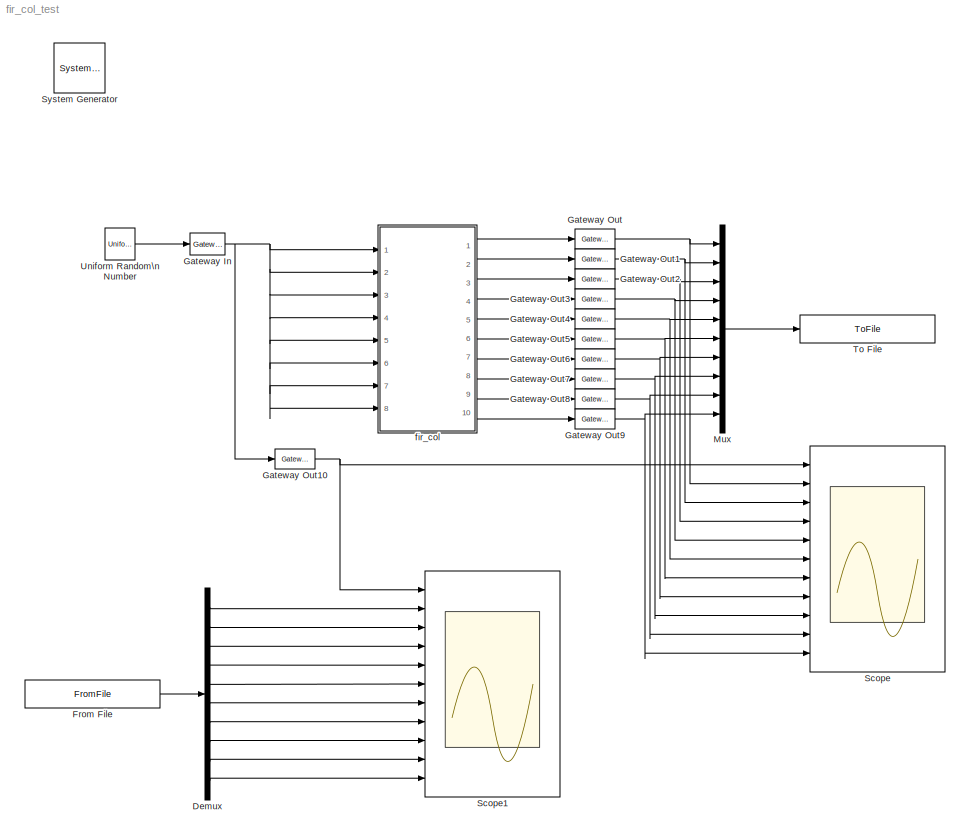
MODEL fir_col_test
KIND model
BLOCK [Reference]  System Generator  REF=xbsIndex_r4/ System Generator
  AttributesFormatString = System\\nGenerator
  FunctionWithSeparateData = off
  Ports = []
  RTWMemSecDataConstants = Inherit from model
  RTWMemSecDataInternal = Inherit from model
  RTWMemSecDataParameters = Inherit from model
  RTWMemSecFuncExecute = Inherit from model
  RTWMemSecFuncInitTerm = Inherit from model
  ShowPortLabels = FromPortIcon
  SourceBlock = xbsIndex_r4/ System Generator
  SourceType = Xilinx System Generator Block
  SystemSampleTime = -1
  Tag = genX
  UserData = DataTag0
  UserDataPersistent = on
  block_type = sysgen
  block_version = 10.1.1
  clock_wrapper = Clock Enables
  core_generation = According to Block Masks
  dbl_ovrd = According to Block Masks
  dcm_input_clock_period = 100
  deprecated_control = off
  directory = ./netlist
  eval_field = 0
  has_advanced_control = 0
  incr_netlist = off
  infoedit = System Generator
  package = ff668
  part = xc4vsx35
  run_coregen = off
  sg_icon_stat = 51,50,-1,-1,red,beige,0,07734,right
  sg_mask_display = fprintf('','COMMENT: begin icon graphics');\npatch([0 51 51 0 ],[0 0 50 50 ],[0.93 0.92 0.86]);\npatch([12 4 16 4 12 25 29 33 47 36 25 17 29 17 25 36 47 33 29 25 12 ],[5 13 25 37 45 45 41 45 45 34 45 37 25 13 5 16 5 5 9 5 5 ],[0.6 0.2 0.25]);\nplot([0 51 51 0 0 ],[0 0 50 50 0 ]);\nfprintf('','COMMENT: end icon graphics');\nfprintf('','COMMENT: begin icon text');\nfprintf('','COMMENT: end icon text...<+5ch>
  sggui_pos = -1,-1,-1,-1
  simulink_period = 1
  speed = -10
  synthesis_tool = XST
  sysclk_period = 100
  testbench = off
  trim_vbits = Everywhere in SubSystem
  xilinxfamily = Virtex4
BLOCK [Demux] Demux
  DisplayOption = bar
  Outputs = 10
  Ports = [1, 10]
BLOCK [FromFile] From File
  FileName = fir_col_test_reference.mat
  SampleTime = 1
BLOCK [Reference] Gateway In  REF=xbsIndex_r4/Gateway In
  LOCs = {}
  Ports = [1, 1]
  SourceBlock = xbsIndex_r4/Gateway In
  SourceType = Xilinx Gateway In Block
  arith_type = Signed  (2's comp)
  bin_pt = 15
  block_type = gatewayin
  block_version = 10.1.1
  dbl_ovrd = off
  has_advanced_control = 0
  hdl_port = on
  infoedit = Gateway in block.  Converts inputs of type Simulink integer, double and fixed point to  Xilinx fixed point type.<P><P>Hardware notes:  In hardware these blocks become top level input ports.
  locs_specified = off
  n_bits = 16
  overflow = Saturate
  period = 1
  quantization = Round  (unbiased: +/- Inf)
  sg_icon_stat = 35,22,1,1,white,yellow,0,00d3666e,right,
  sg_mask_display = fprintf('','COMMENT: begin icon graphics');\npatch([0 1 1 0 ],[0 0 1 1 ],[0.95 0.93 0.65]);\npatch([0.342857 0.228571 0.371429 0.228571 0.342857 0.514286 0.571429 0.628571 0.8 0.657143 0.514286 0.428571 0.6 0.428571 0.514286 0.657143 0.8 0.628571 0.571429 0.514286 0.342857 ],[0.0909091 0.272727 0.5 0.727273 0.909091 0.909091 0.818182 0.909091 0.909091 0.681818 0.909091 0.772727 0.5 0.227273 0.0909...<+366ch>
  sggui_pos = 20,20,407,458
  timing_constraint = None
  xl_area = [0,0,0,0,0,0,0]
  xl_use_area = off
BLOCK [Reference] Gateway Out  REF=xbsIndex_r4/Gateway Out
  LOCs = {}
  Ports = [1, 1]
  SourceBlock = xbsIndex_r4/Gateway Out
  SourceType = Xilinx Gateway Out Block
  block_type = gatewayout
  block_version = 10.1.1
  has_advanced_control = 0
  hdl_port = on
  infoedit = Gateway out block.  Converts Xilinx fixed point inputs into ouputs of type Simulink integer, double, or fixed point.<P><P>Hardware notes:  In hardware these blocks become top level output ports or are discarded, depending on how they are configured.  <repeated x11 — deduplicated; at blocks: Gateway Out, Gateway Out1, Gateway Out10, Gateway Out2, Gateway Out3, Gateway Out4, Gateway Out5, Gateway Out6, Gateway Out7, Gateway Out8, Gateway Out9>
  locs_specified = off
  sg_icon_stat = 40,20,1,1,white,yellow,0,cc31b7ac,right,
  sg_mask_display = fprintf('','COMMENT: begin icon graphics');\npatch([0 1 1 0 ],[0 0 1 1 ],[0.95 0.93 0.65]);\npatch([0.35 0.275 0.4 0.275 0.35 0.475 0.5 0.525 0.675 0.575 0.475 0.4 0.525 0.4 0.475 0.575 0.675 0.525 0.5 0.475 0.35 ],[0.1 0.25 0.5 0.75 0.9 0.9 0.85 0.9 0.9 0.7 0.9 0.75 0.5 0.25 0.1 0.3 0.1 0.1 0.15 0.1 0.1 ],[0.98 0.96 0.92]);\nplot([0 1 1 0 0 ],[0 0 1 1 0 ]);\nfprintf('','COMMENT: end icon graphics...<+211ch>  <repeated x11 — deduplicated; at blocks: Gateway Out, Gateway Out1, Gateway Out10, Gateway Out2, Gateway Out3, Gateway Out4, Gateway Out5, Gateway Out6, Gateway Out7, Gateway Out8, Gateway Out9>
  sggui_pos = -1,-1,-1,-1
  timing_constraint = None
  xl_area = [0,0,0,0,0,0,0]
  xl_use_area = off
BLOCK [Reference] Gateway Out1  REF=xbsIndex_r4/Gateway Out
  LOCs = {}
  Ports = [1, 1]
  SourceBlock = xbsIndex_r4/Gateway Out
  SourceType = Xilinx Gateway Out Block
  block_type = gatewayout
  block_version = 10.1.1
  has_advanced_control = 0
  hdl_port = on
  locs_specified = off
  sg_icon_stat = 40,20,1,1,white,yellow,0,cc31b7ac,right,
  sggui_pos = -1,-1,-1,-1
  timing_constraint = None
  xl_area = [0,0,0,0,0,0,0]
  xl_use_area = off
BLOCK [Reference] Gateway Out10  REF=xbsIndex_r4/Gateway Out
  LOCs = {}
  Ports = [1, 1]
  SourceBlock = xbsIndex_r4/Gateway Out
  SourceType = Xilinx Gateway Out Block
  block_type = gatewayout
  block_version = 10.1.1
  has_advanced_control = 0
  hdl_port = on
  locs_specified = off
  sg_icon_stat = 40,20,1,1,white,yellow,0,cc31b7ac,right,
  sggui_pos = -1,-1,-1,-1
  timing_constraint = None
  xl_area = [0,0,0,0,0,0,0]
  xl_use_area = off
BLOCK [Reference] Gateway Out2  REF=xbsIndex_r4/Gateway Out
  LOCs = {}
  Ports = [1, 1]
  SourceBlock = xbsIndex_r4/Gateway Out
  SourceType = Xilinx Gateway Out Block
  block_type = gatewayout
  block_version = 10.1.1
  has_advanced_control = 0
  hdl_port = on
  locs_specified = off
  sg_icon_stat = 40,20,1,1,white,yellow,0,cc31b7ac,right,
  sggui_pos = -1,-1,-1,-1
  timing_constraint = None
  xl_area = [0,0,0,0,0,0,0]
  xl_use_area = off
BLOCK [Reference] Gateway Out3  REF=xbsIndex_r4/Gateway Out
  LOCs = {}
  Ports = [1, 1]
  SourceBlock = xbsIndex_r4/Gateway Out
  SourceType = Xilinx Gateway Out Block
  block_type = gatewayout
  block_version = 10.1.1
  has_advanced_control = 0
  hdl_port = on
  locs_specified = off
  sg_icon_stat = 40,20,1,1,white,yellow,0,cc31b7ac,right,
  sggui_pos = -1,-1,-1,-1
  timing_constraint = None
  xl_area = [0,0,0,0,0,0,0]
  xl_use_area = off
BLOCK [Reference] Gateway Out4  REF=xbsIndex_r4/Gateway Out
  LOCs = {}
  Ports = [1, 1]
  SourceBlock = xbsIndex_r4/Gateway Out
  SourceType = Xilinx Gateway Out Block
  block_type = gatewayout
  block_version = 10.1.1
  has_advanced_control = 0
  hdl_port = on
  locs_specified = off
  sg_icon_stat = 40,20,1,1,white,yellow,0,cc31b7ac,right,
  sggui_pos = -1,-1,-1,-1
  timing_constraint = None
  xl_area = [0,0,0,0,0,0,0]
  xl_use_area = off
BLOCK [Reference] Gateway Out5  REF=xbsIndex_r4/Gateway Out
  LOCs = {}
  Ports = [1, 1]
  SourceBlock = xbsIndex_r4/Gateway Out
  SourceType = Xilinx Gateway Out Block
  block_type = gatewayout
  block_version = 10.1.1
  has_advanced_control = 0
  hdl_port = on
  locs_specified = off
  sg_icon_stat = 40,20,1,1,white,yellow,0,cc31b7ac,right,
  sggui_pos = -1,-1,-1,-1
  timing_constraint = None
  xl_area = [0,0,0,0,0,0,0]
  xl_use_area = off
BLOCK [Reference] Gateway Out6  REF=xbsIndex_r4/Gateway Out
  LOCs = {}
  Ports = [1, 1]
  SourceBlock = xbsIndex_r4/Gateway Out
  SourceType = Xilinx Gateway Out Block
  block_type = gatewayout
  block_version = 10.1.1
  has_advanced_control = 0
  hdl_port = on
  locs_specified = off
  sg_icon_stat = 40,20,1,1,white,yellow,0,cc31b7ac,right,
  sggui_pos = -1,-1,-1,-1
  timing_constraint = None
  xl_area = [0,0,0,0,0,0,0]
  xl_use_area = off
BLOCK [Reference] Gateway Out7  REF=xbsIndex_r4/Gateway Out
  LOCs = {}
  Ports = [1, 1]
  SourceBlock = xbsIndex_r4/Gateway Out
  SourceType = Xilinx Gateway Out Block
  block_type = gatewayout
  block_version = 10.1.1
  has_advanced_control = 0
  hdl_port = on
  locs_specified = off
  sg_icon_stat = 40,20,1,1,white,yellow,0,cc31b7ac,right,
  sggui_pos = -1,-1,-1,-1
  timing_constraint = None
  xl_area = [0,0,0,0,0,0,0]
  xl_use_area = off
BLOCK [Reference] Gateway Out8  REF=xbsIndex_r4/Gateway Out
  LOCs = {}
  Ports = [1, 1]
  SourceBlock = xbsIndex_r4/Gateway Out
  SourceType = Xilinx Gateway Out Block
  block_type = gatewayout
  block_version = 10.1.1
  has_advanced_control = 0
  hdl_port = on
  locs_specified = off
  sg_icon_stat = 40,20,1,1,white,yellow,0,cc31b7ac,right,
  sggui_pos = -1,-1,-1,-1
  timing_constraint = None
  xl_area = [0,0,0,0,0,0,0]
  xl_use_area = off
BLOCK [Reference] Gateway Out9  REF=xbsIndex_r4/Gateway Out
  LOCs = {}
  Ports = [1, 1]
  SourceBlock = xbsIndex_r4/Gateway Out
  SourceType = Xilinx Gateway Out Block
  block_type = gatewayout
  block_version = 10.1.1
  has_advanced_control = 0
  hdl_port = on
  locs_specified = off
  sg_icon_stat = 40,20,1,1,white,yellow,0,cc31b7ac,right,
  sggui_pos = -1,-1,-1,-1
  timing_constraint = None
  xl_area = [0,0,0,0,0,0,0]
  xl_use_area = off
BLOCK [Mux] Mux
  DisplayOption = bar
  Inputs = 10
  Ports = [10, 1]
BLOCK [Scope] Scope
  DataFormat = StructureWithTime
  Floating = off
  NumInputPorts = 11
  Ports = [11]
  SampleTime = 0
  YMax = 1~1~1~1~1~1~1~1~1~5~5
  YMin = -1~-1~-1~-1~-1~-1~-1~-1~-1~-5~-5
BLOCK [Scope] Scope1
  DataFormat = StructureWithTime
  Floating = off
  NumInputPorts = 11
  Ports = [11]
  SampleTime = 0
  SaveName = ScopeData1
  YMax = 1~1~1~1~1~1~1~1~1~5~5
  YMin = -1~-1~-1~-1~-1~-1~-1~-1~-1~-5~-5
BLOCK [ToFile] To File
  Filename = fir_col_test_output.mat
  MatrixName = output
BLOCK [UniformRandomNumber] Uniform Random\nNumber
  SampleTime = 0
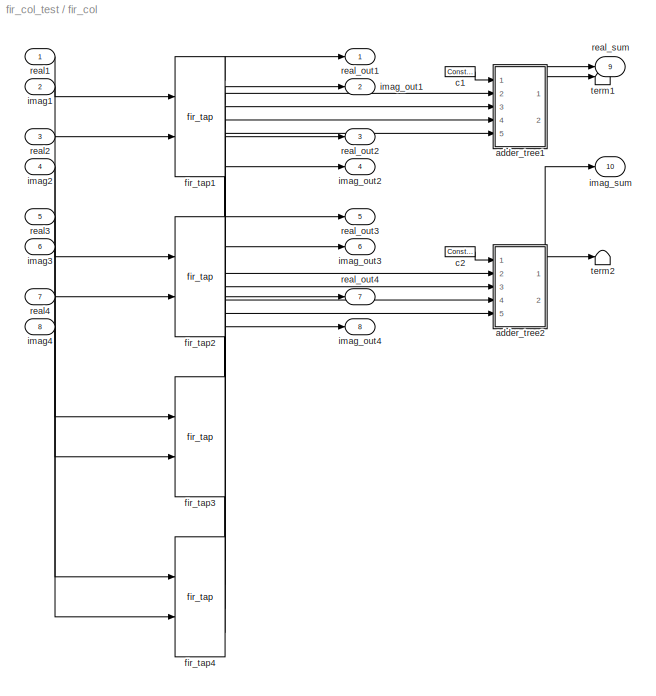
BLOCK [SubSystem] fir_col
  AncestorBlock = casper_library_downconverter/fir_col
  FunctionWithSeparateData = off
  MaskCallbackString = |||||||
  MaskEnableString = on,on,on,on,on,on,on,on
  MaskHelp = eval('xlWeb(''http://casper.berkeley.edu/wiki/Fir_col'')')
  MaskHideContents = off
  MaskIconFrame = on
  MaskIconOpaque = on
  MaskIconRotate = none
  MaskIconUnits = autoscale
  MaskInitialization = fir_col_init(gcb, ...\n    'n_inputs', n_inputs,...\n    'coeff', coeff, ...\n    'mult_latency', mult_latency, ...\n    'add_latency', add_latency, ...\n    'coeff_bit_width', coeff_bit_width, ...\n    'coeff_bin_pt', coeff_bin_pt, ...\n    'first_stage_hdl', first_stage_hdl, ...\n    'adder_imp', adder_imp);
  MaskPromptString = Inputs|Coefficients|Add latency|Mult Latency|Coefficient bit width|Coefficient binary point|Implement first stage of adder trees on output as behavioural HDL|Adder implementation
  MaskSelfModifiable = on
  MaskStyleString = edit,edit,edit,edit,edit,edit,checkbox,popup(Behavioral|Fabric|DSP48)
  MaskTabNameString = ,,,,,,,
  MaskToolTipString = on,on,on,on,on,on,on,on
  MaskTunableValueString = on,on,on,on,on,on,on,on
  MaskType = fir_col
  MaskValueString = 4|getfield( getfield( get_param( gcb,'UserData' ), 'parameters'),'coeff')|4|3|18|17|on|Fabric
  MaskVarAliasString = ,,,,,,,
  MaskVariables = n_inputs=@1;coeff=@2;add_latency=@3;mult_latency=@4;coeff_bit_width=@5;coeff_bin_pt=@6;first_stage_hdl=&7;adder_imp=&8;
  MaskVisibilityString = on,on,on,on,on,on,on,on
  MinAlgLoopOccurrences = off
  Opaque = off
  Ports = [8, 10]
  PropExecContextOutsideSubsystem = off
  RTWSystemCode = Auto
  RequestExecContextInheritance = off
  UserData = DataTag1
  UserDataPersistent = on
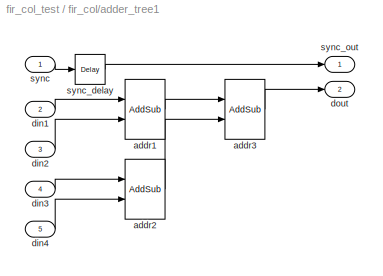
BLOCK [SubSystem] fir_col/adder_tree1
  AncestorBlock = casper_library_misc/adder_tree
  AttributesFormatString = latency 8
  FunctionWithSeparateData = off
  MaskCallbackString = |||
  MaskDescription = Sums all inputs using a tree of adds and delays.\n\nNumber of inputs: The number of inputs to the block to be summed\nAdd latency: The number of clock cycles to perform one addition (affects timing)..\nAdder implementation: choice of fabric or DSP48E core, or behavioral HDL\nUse behavioural HDL for first stage of adders: Causes the first stage of adders to be absorbed into DSP blocks if multiplier...<+59ch>
  MaskEnableString = on,on,on,on
  MaskHelp = eval('xlWeb(''http://casper.berkeley.edu/wiki/Adder_tree'')')
  MaskHideContents = off
  MaskIconFrame = on
  MaskIconOpaque = on
  MaskIconRotate = none
  MaskIconUnits = autoscale
  MaskInitialization = adder_tree_init(gcb, ...\n    'n_inputs', n_inputs, ...\n    'latency', latency, ...\n    'adder_imp', adder_imp, ...\n    'first_stage_hdl', first_stage_hdl);
  MaskPromptString = Number of Inputs|Add Latency|Adder implementation|Use behavioural HDL for first stage of adders
  MaskSelfModifiable = on
  MaskStyleString = edit,edit,popup(Behavioral|Fabric|DSP48),checkbox
  MaskTabNameString = ,,,
  MaskToolTipString = on,on,on,on
  MaskTunableValueString = on,on,on,on
  MaskType = adder_tree
  MaskValueString = 4|4|Fabric|on
  MaskVarAliasString = ,,,
  MaskVariables = n_inputs=@1;latency=@2;adder_imp=&3;first_stage_hdl=&4;
  MaskVisibilityString = on,on,on,on
  MinAlgLoopOccurrences = off
  Opaque = off
  Ports = [5, 2]
  PropExecContextOutsideSubsystem = off
  RTWSystemCode = Auto
  RequestExecContextInheritance = off
  UserData = DataTag2
  UserDataPersistent = on
BLOCK [Reference] fir_col/adder_tree1/addr1  REF=xbsIndex_r4/AddSub
  Ports = [2, 1]
  SourceBlock = xbsIndex_r4/AddSub
  SourceType = Xilinx Adder/Subtracter Block
  arith_type = Unsigned
  bin_pt = 14
  block_type = addsub
  block_version = 11.4
  dbl_ovrd = off
  en = off
  has_advanced_control = 0
  hw_selection = Fabric
  latency = 4
  mode = Addition
  n_bits = 16
  overflow = Wrap
  pipelined = on
  precision = Full
  quantization = Truncate
  sg_icon_stat = 40,60,2,1,white,blue,0,4eb764e4,right,
  sg_mask_display = fprintf('','COMMENT: begin icon graphics');\npatch([0 1 1 0 ],[0 0 1 1 ],[0.77 0.82 0.91]);\npatch([0.25 0.075 0.3 0.075 0.25 0.525 0.6 0.675 0.95 0.725 0.5 0.35 0.6 0.35 0.5 0.725 0.95 0.675 0.6 0.525 0.25 ],[0.233333 0.35 0.5 0.65 0.766667 0.766667 0.716667 0.766667 0.766667 0.616667 0.766667 0.666667 0.5 0.333333 0.233333 0.383333 0.233333 0.233333 0.283333 0.233333 0.233333 ],[0.98 0.96 0.92])...<+386ch>  <repeated x6 — deduplicated; at blocks: addr1, addr2, addr3>
  sggui_pos = 22,98,419,344
  use_behavioral_HDL = on
  use_carryin = off
  use_carryout = off
  use_rpm = on
  xl_area = [0,0,0,0,0,0,0]
  xl_use_area = off
BLOCK [Reference] fir_col/adder_tree1/addr2  REF=xbsIndex_r4/AddSub
  Ports = [2, 1]
  SourceBlock = xbsIndex_r4/AddSub
  SourceType = Xilinx Adder/Subtracter Block
  arith_type = Unsigned
  bin_pt = 14
  block_type = addsub
  block_version = 11.4
  dbl_ovrd = off
  en = off
  has_advanced_control = 0
  hw_selection = Fabric
  latency = 4
  mode = Addition
  n_bits = 16
  overflow = Wrap
  pipelined = on
  precision = Full
  quantization = Truncate
  sg_icon_stat = 40,60,2,1,white,blue,0,4eb764e4,right,
  sggui_pos = -1,-1,-1,-1
  use_behavioral_HDL = on
  use_carryin = off
  use_carryout = off
  use_rpm = on
  xl_area = [0,0,0,0,0,0,0]
  xl_use_area = off
BLOCK [Reference] fir_col/adder_tree1/addr3  REF=xbsIndex_r4/AddSub
  Ports = [2, 1]
  SourceBlock = xbsIndex_r4/AddSub
  SourceType = Xilinx Adder/Subtracter Block
  arith_type = Unsigned
  bin_pt = 14
  block_type = addsub
  block_version = 11.4
  dbl_ovrd = off
  en = off
  has_advanced_control = 0
  hw_selection = Fabric
  latency = 4
  mode = Addition
  n_bits = 16
  overflow = Wrap
  pipelined = on
  precision = Full
  quantization = Truncate
  sg_icon_stat = 40,60,2,1,white,blue,0,4eb764e4,right,
  sggui_pos = -1,-1,-1,-1
  use_behavioral_HDL = off
  use_carryin = off
  use_carryout = off
  use_rpm = on
  xl_area = [0,0,0,0,0,0,0]
  xl_use_area = off
BLOCK [Inport] fir_col/adder_tree1/din1
  IconDisplay = Port number
  Port = 2
BLOCK [Inport] fir_col/adder_tree1/din2
  IconDisplay = Port number
  Port = 3
BLOCK [Inport] fir_col/adder_tree1/din3
  IconDisplay = Port number
  Port = 4
BLOCK [Inport] fir_col/adder_tree1/din4
  IconDisplay = Port number
  Port = 5
BLOCK [Outport] fir_col/adder_tree1/dout
  IconDisplay = Port number
  Port = 2
BLOCK [Inport] fir_col/adder_tree1/sync
  IconDisplay = Port number
BLOCK [Reference] fir_col/adder_tree1/sync_delay  REF=xbsIndex_r4/Delay
  Ports = [1, 1]
  SourceBlock = xbsIndex_r4/Delay
  SourceType = Xilinx Delay Block
  block_type = delay
  block_version = 11.4
  dbl_ovrd = off
  en = off
  has_advanced_control = 0
  infoedit = Hardware notes: A delay line is a chain, each link of which is an SRL16 followed by a flip-flop.
  latency = 8
  reg_retiming = on
  sg_icon_stat = 30,30,1,1,white,blue,0,e47f993a,right,
  sg_mask_display = fprintf('','COMMENT: begin icon graphics');\npatch([0 1 1 0 ],[0 0 1 1 ],[0.77 0.82 0.91]);\npatch([0.233333 0.0666667 0.3 0.0666667 0.233333 0.5 0.566667 0.633333 0.9 0.666667 0.466667 0.3 0.5 0.3 0.466667 0.666667 0.9 0.633333 0.566667 0.5 0.233333 ],[0.1 0.266667 0.5 0.733333 0.9 0.9 0.833333 0.9 0.9 0.666667 0.866667 0.7 0.5 0.3 0.133333 0.333333 0.1 0.1 0.166667 0.1 0.1 ],[0.98 0.96 0.92]);\n...<+204ch>
  sggui_pos = 21,71,419,315
  xl_area = [0,0,0,0,0,0,0]
  xl_use_area = off
BLOCK [Outport] fir_col/adder_tree1/sync_out
  IconDisplay = Port number
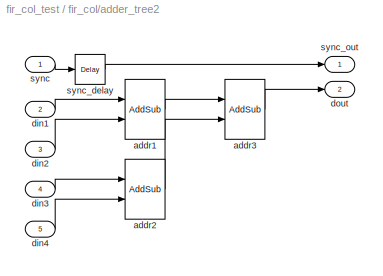
BLOCK [SubSystem] fir_col/adder_tree2
  AncestorBlock = casper_library_misc/adder_tree
  AttributesFormatString = latency 8
  FunctionWithSeparateData = off
  MaskCallbackString = |||
  MaskDescription = Sums all inputs using a tree of adds and delays.\n\nNumber of inputs: The number of inputs to the block to be summed\nAdd latency: The number of clock cycles to perform one addition (affects timing)..\nAdder implementation: choice of fabric or DSP48E core, or behavioral HDL\nUse behavioural HDL for first stage of adders: Causes the first stage of adders to be absorbed into DSP blocks if multiplier...<+59ch>
  MaskEnableString = on,on,on,on
  MaskHelp = eval('xlWeb(''http://casper.berkeley.edu/wiki/Adder_tree'')')
  MaskHideContents = off
  MaskIconFrame = on
  MaskIconOpaque = on
  MaskIconRotate = none
  MaskIconUnits = autoscale
  MaskInitialization = adder_tree_init(gcb, ...\n    'n_inputs', n_inputs, ...\n    'latency', latency, ...\n    'adder_imp', adder_imp, ...\n    'first_stage_hdl', first_stage_hdl);
  MaskPromptString = Number of Inputs|Add Latency|Adder implementation|Use behavioural HDL for first stage of adders
  MaskSelfModifiable = on
  MaskStyleString = edit,edit,popup(Behavioral|Fabric|DSP48),checkbox
  MaskTabNameString = ,,,
  MaskToolTipString = on,on,on,on
  MaskTunableValueString = on,on,on,on
  MaskType = adder_tree
  MaskValueString = 4|4|Fabric|on
  MaskVarAliasString = ,,,
  MaskVariables = n_inputs=@1;latency=@2;adder_imp=&3;first_stage_hdl=&4;
  MaskVisibilityString = on,on,on,on
  MinAlgLoopOccurrences = off
  Opaque = off
  Ports = [5, 2]
  PropExecContextOutsideSubsystem = off
  RTWSystemCode = Auto
  RequestExecContextInheritance = off
  UserData = DataTag3
  UserDataPersistent = on
BLOCK [Reference] fir_col/adder_tree2/addr1  REF=xbsIndex_r4/AddSub
  Ports = [2, 1]
  SourceBlock = xbsIndex_r4/AddSub
  SourceType = Xilinx Adder/Subtracter Block
  arith_type = Unsigned
  bin_pt = 14
  block_type = addsub
  block_version = 11.4
  dbl_ovrd = off
  en = off
  has_advanced_control = 0
  hw_selection = Fabric
  latency = 4
  mode = Addition
  n_bits = 16
  overflow = Wrap
  pipelined = on
  precision = Full
  quantization = Truncate
  sg_icon_stat = 40,60,2,1,white,blue,0,4eb764e4,right,
  sggui_pos = 22,98,419,344
  use_behavioral_HDL = on
  use_carryin = off
  use_carryout = off
  use_rpm = on
  xl_area = [0,0,0,0,0,0,0]
  xl_use_area = off
BLOCK [Reference] fir_col/adder_tree2/addr2  REF=xbsIndex_r4/AddSub
  Ports = [2, 1]
  SourceBlock = xbsIndex_r4/AddSub
  SourceType = Xilinx Adder/Subtracter Block
  arith_type = Unsigned
  bin_pt = 14
  block_type = addsub
  block_version = 11.4
  dbl_ovrd = off
  en = off
  has_advanced_control = 0
  hw_selection = Fabric
  latency = 4
  mode = Addition
  n_bits = 16
  overflow = Wrap
  pipelined = on
  precision = Full
  quantization = Truncate
  sg_icon_stat = 40,60,2,1,white,blue,0,4eb764e4,right,
  sggui_pos = -1,-1,-1,-1
  use_behavioral_HDL = on
  use_carryin = off
  use_carryout = off
  use_rpm = on
  xl_area = [0,0,0,0,0,0,0]
  xl_use_area = off
BLOCK [Reference] fir_col/adder_tree2/addr3  REF=xbsIndex_r4/AddSub
  Ports = [2, 1]
  SourceBlock = xbsIndex_r4/AddSub
  SourceType = Xilinx Adder/Subtracter Block
  arith_type = Unsigned
  bin_pt = 14
  block_type = addsub
  block_version = 11.4
  dbl_ovrd = off
  en = off
  has_advanced_control = 0
  hw_selection = Fabric
  latency = 4
  mode = Addition
  n_bits = 16
  overflow = Wrap
  pipelined = on
  precision = Full
  quantization = Truncate
  sg_icon_stat = 40,60,2,1,white,blue,0,4eb764e4,right,
  sggui_pos = -1,-1,-1,-1
  use_behavioral_HDL = off
  use_carryin = off
  use_carryout = off
  use_rpm = on
  xl_area = [0,0,0,0,0,0,0]
  xl_use_area = off
BLOCK [Inport] fir_col/adder_tree2/din1
  IconDisplay = Port number
  Port = 2
BLOCK [Inport] fir_col/adder_tree2/din2
  IconDisplay = Port number
  Port = 3
BLOCK [Inport] fir_col/adder_tree2/din3
  IconDisplay = Port number
  Port = 4
BLOCK [Inport] fir_col/adder_tree2/din4
  IconDisplay = Port number
  Port = 5
BLOCK [Outport] fir_col/adder_tree2/dout
  IconDisplay = Port number
  Port = 2
BLOCK [Inport] fir_col/adder_tree2/sync
  IconDisplay = Port number
BLOCK [Reference] fir_col/adder_tree2/sync_delay  REF=xbsIndex_r4/Delay
  Ports = [1, 1]
  SourceBlock = xbsIndex_r4/Delay
  SourceType = Xilinx Delay Block
  block_type = delay
  block_version = 11.4
  dbl_ovrd = off
  en = off
  has_advanced_control = 0
  infoedit = Hardware notes: A delay line is a chain, each link of which is an SRL16 followed by a flip-flop.
  latency = 8
  reg_retiming = on
  sg_icon_stat = 30,30,1,1,white,blue,0,e47f993a,right,
  sg_mask_display = fprintf('','COMMENT: begin icon graphics');\npatch([0 1 1 0 ],[0 0 1 1 ],[0.77 0.82 0.91]);\npatch([0.233333 0.0666667 0.3 0.0666667 0.233333 0.5 0.566667 0.633333 0.9 0.666667 0.466667 0.3 0.5 0.3 0.466667 0.666667 0.9 0.633333 0.566667 0.5 0.233333 ],[0.1 0.266667 0.5 0.733333 0.9 0.9 0.833333 0.9 0.9 0.666667 0.866667 0.7 0.5 0.3 0.133333 0.333333 0.1 0.1 0.166667 0.1 0.1 ],[0.98 0.96 0.92]);\n...<+204ch>
  sggui_pos = 21,71,419,315
  xl_area = [0,0,0,0,0,0,0]
  xl_use_area = off
BLOCK [Outport] fir_col/adder_tree2/sync_out
  IconDisplay = Port number
BLOCK [Reference] fir_col/c1  REF=xbsIndex_r4/Constant
  Ports = [0, 1]
  SourceBlock = xbsIndex_r4/Constant
  SourceType = Xilinx Constant Block Block
  arith_type = Signed (2's comp)
  bin_pt = 14
  block_type = constant
  block_version = 11.4
  carry = CIN
  const = 1
  dbl_ovrd = off
  dsp48_infoedit = The use of this block for DSP48 instructions is deprecated.  Please use the Opmode block.
  equ = P=C
  explicit_period = on
  has_advanced_control = 0
  inp1 = P
  inp2 = PCIN>>17
  n_bits = 16
  opr = +
  opselect = C
  period = 1
  sg_icon_stat = 30,10,0,1,white,blue,0,1c72b5be,right,
  sg_mask_display = fprintf('','COMMENT: begin icon graphics');\npatch([0 1 1 0 ],[0 0 1 1 ],[0.77 0.82 0.91]);\npatch([0.433333 0.366667 0.433333 0.366667 0.433333 0.533333 0.566667 0.6 0.7 0.633333 0.566667 0.5 0.566667 0.5 0.566667 0.633333 0.7 0.6 0.566667 0.533333 0.433333 ],[0.1 0.3 0.5 0.7 0.9 0.9 0.8 0.9 0.9 0.7 0.9 0.7 0.5 0.3 0.1 0.3 0.1 0.1 0.2 0.1 0.1 ],[0.98 0.96 0.92]);\nplot([0 1 1 0 0 ],[0 0 1 1 0 ]);...<+169ch>
  sggui_pos = -1,-1,-1,-1
BLOCK [Reference] fir_col/c2  REF=xbsIndex_r4/Constant
  Ports = [0, 1]
  SourceBlock = xbsIndex_r4/Constant
  SourceType = Xilinx Constant Block Block
  arith_type = Signed (2's comp)
  bin_pt = 14
  block_type = constant
  block_version = 11.4
  carry = CIN
  const = 1
  dbl_ovrd = off
  dsp48_infoedit = The use of this block for DSP48 instructions is deprecated.  Please use the Opmode block.
  equ = P=C
  explicit_period = on
  has_advanced_control = 0
  inp1 = P
  inp2 = PCIN>>17
  n_bits = 16
  opr = +
  opselect = C
  period = 1
  sg_icon_stat = 30,10,0,1,white,blue,0,1c72b5be,right,
  sg_mask_display = fprintf('','COMMENT: begin icon graphics');\npatch([0 1 1 0 ],[0 0 1 1 ],[0.77 0.82 0.91]);\npatch([0.433333 0.366667 0.433333 0.366667 0.433333 0.533333 0.566667 0.6 0.7 0.633333 0.566667 0.5 0.566667 0.5 0.566667 0.633333 0.7 0.6 0.566667 0.533333 0.433333 ],[0.1 0.3 0.5 0.7 0.9 0.9 0.8 0.9 0.9 0.7 0.9 0.7 0.5 0.3 0.1 0.3 0.1 0.1 0.2 0.1 0.1 ],[0.98 0.96 0.92]);\nplot([0 1 1 0 0 ],[0 0 1 1 0 ]);...<+169ch>
  sggui_pos = -1,-1,-1,-1
BLOCK [Reference] fir_col/fir_tap1  REF=casper_library_downconverter/fir_tap
  FunctionWithSeparateData = off
  Ports = [2, 4]
  RTWMemSecDataConstants = Inherit from model
  RTWMemSecDataInternal = Inherit from model
  RTWMemSecDataParameters = Inherit from model
  RTWMemSecFuncExecute = Inherit from model
  RTWMemSecFuncInitTerm = Inherit from model
  ShowPortLabels = FromPortIcon
  SourceBlock = casper_library_downconverter/fir_tap
  SourceType = fir_tap
  SystemSampleTime = -1
  coeff_bin_pt = 17
  coeff_bit_width = 18
  factor = 0.1
  latency = 3
BLOCK [Reference] fir_col/fir_tap2  REF=casper_library_downconverter/fir_tap
  FunctionWithSeparateData = off
  Ports = [2, 4]
  RTWMemSecDataConstants = Inherit from model
  RTWMemSecDataInternal = Inherit from model
  RTWMemSecDataParameters = Inherit from model
  RTWMemSecFuncExecute = Inherit from model
  RTWMemSecFuncInitTerm = Inherit from model
  ShowPortLabels = FromPortIcon
  SourceBlock = casper_library_downconverter/fir_tap
  SourceType = fir_tap
  SystemSampleTime = -1
  coeff_bin_pt = 17
  coeff_bit_width = 18
  factor = 0.2
  latency = 3
BLOCK [Reference] fir_col/fir_tap3  REF=casper_library_downconverter/fir_tap
  FunctionWithSeparateData = off
  Ports = [2, 4]
  RTWMemSecDataConstants = Inherit from model
  RTWMemSecDataInternal = Inherit from model
  RTWMemSecDataParameters = Inherit from model
  RTWMemSecFuncExecute = Inherit from model
  RTWMemSecFuncInitTerm = Inherit from model
  ShowPortLabels = FromPortIcon
  SourceBlock = casper_library_downconverter/fir_tap
  SourceType = fir_tap
  SystemSampleTime = -1
  coeff_bin_pt = 17
  coeff_bit_width = 18
  factor = 0.3
  latency = 3
BLOCK [Reference] fir_col/fir_tap4  REF=casper_library_downconverter/fir_tap
  FunctionWithSeparateData = off
  Ports = [2, 4]
  RTWMemSecDataConstants = Inherit from model
  RTWMemSecDataInternal = Inherit from model
  RTWMemSecDataParameters = Inherit from model
  RTWMemSecFuncExecute = Inherit from model
  RTWMemSecFuncInitTerm = Inherit from model
  ShowPortLabels = FromPortIcon
  SourceBlock = casper_library_downconverter/fir_tap
  SourceType = fir_tap
  SystemSampleTime = -1
  coeff_bin_pt = 17
  coeff_bit_width = 18
  factor = 0.4
  latency = 3
BLOCK [Inport] fir_col/imag1
  IconDisplay = Port number
  Port = 2
BLOCK [Inport] fir_col/imag2
  IconDisplay = Port number
  Port = 4
BLOCK [Inport] fir_col/imag3
  IconDisplay = Port number
  Port = 6
BLOCK [Inport] fir_col/imag4
  IconDisplay = Port number
  Port = 8
BLOCK [Outport] fir_col/imag_out1
  IconDisplay = Port number
  Port = 2
BLOCK [Outport] fir_col/imag_out2
  IconDisplay = Port number
  Port = 4
BLOCK [Outport] fir_col/imag_out3
  IconDisplay = Port number
  Port = 6
BLOCK [Outport] fir_col/imag_out4
  IconDisplay = Port number
  Port = 8
BLOCK [Outport] fir_col/imag_sum
  IconDisplay = Port number
  Port = 10
BLOCK [Inport] fir_col/real1
  IconDisplay = Port number
BLOCK [Inport] fir_col/real2
  IconDisplay = Port number
  Port = 3
BLOCK [Inport] fir_col/real3
  IconDisplay = Port number
  Port = 5
BLOCK [Inport] fir_col/real4
  IconDisplay = Port number
  Port = 7
BLOCK [Outport] fir_col/real_out1
  IconDisplay = Port number
BLOCK [Outport] fir_col/real_out2
  IconDisplay = Port number
  Port = 3
BLOCK [Outport] fir_col/real_out3
  IconDisplay = Port number
  Port = 5
BLOCK [Outport] fir_col/real_out4
  IconDisplay = Port number
  Port = 7
BLOCK [Outport] fir_col/real_sum
  IconDisplay = Port number
  Port = 9
BLOCK [Terminator] fir_col/term1
BLOCK [Terminator] fir_col/term2
LINE Demux:1 -> Scope1:2
LINE Demux:10 -> Scope1:11
LINE Demux:2 -> Scope1:3
LINE Demux:3 -> Scope1:4
LINE Demux:4 -> Scope1:5
LINE Demux:5 -> Scope1:6
LINE Demux:6 -> Scope1:7
LINE Demux:7 -> Scope1:8
LINE Demux:8 -> Scope1:9
LINE Demux:9 -> Scope1:10
LINE From File:1 -> Demux:1
NET Gateway In:1 -> Gateway Out10:1, fir_col:1, fir_col:2, fir_col:3, fir_col:4, fir_col:5, fir_col:6, fir_col:7, fir_col:8
NET Gateway Out10:1 -> Scope1:1, Scope:1
NET Gateway Out1:1 -> Mux:2, Scope:3
NET Gateway Out2:1 -> Mux:3, Scope:4
NET Gateway Out3:1 -> Mux:4, Scope:5
NET Gateway Out4:1 -> Mux:5, Scope:6
NET Gateway Out5:1 -> Mux:6, Scope:7
NET Gateway Out6:1 -> Mux:7, Scope:8
NET Gateway Out7:1 -> Mux:8, Scope:9
NET Gateway Out8:1 -> Mux:9, Scope:10
NET Gateway Out9:1 -> Mux:10, Scope:11
NET Gateway Out:1 -> Mux:1, Scope:2
LINE Mux:1 -> To File:1
LINE Uniform Random\nNumber:1 -> Gateway In:1
LINE fir_col/adder_tree1/addr1:1 -> fir_col/adder_tree1/addr3:1
LINE fir_col/adder_tree1/addr2:1 -> fir_col/adder_tree1/addr3:2
LINE fir_col/adder_tree1/addr3:1 -> fir_col/adder_tree1/dout:1
LINE fir_col/adder_tree1/din1:1 -> fir_col/adder_tree1/addr1:1
LINE fir_col/adder_tree1/din2:1 -> fir_col/adder_tree1/addr1:2
LINE fir_col/adder_tree1/din3:1 -> fir_col/adder_tree1/addr2:1
LINE fir_col/adder_tree1/din4:1 -> fir_col/adder_tree1/addr2:2
LINE fir_col/adder_tree1/sync:1 -> fir_col/adder_tree1/sync_delay:1
LINE fir_col/adder_tree1/sync_delay:1 -> fir_col/adder_tree1/sync_out:1
LINE fir_col/adder_tree1:1 -> fir_col/term1:1
LINE fir_col/adder_tree1:2 -> fir_col/real_sum:1
LINE fir_col/adder_tree2/addr1:1 -> fir_col/adder_tree2/addr3:1
LINE fir_col/adder_tree2/addr2:1 -> fir_col/adder_tree2/addr3:2
LINE fir_col/adder_tree2/addr3:1 -> fir_col/adder_tree2/dout:1
LINE fir_col/adder_tree2/din1:1 -> fir_col/adder_tree2/addr1:1
LINE fir_col/adder_tree2/din2:1 -> fir_col/adder_tree2/addr1:2
LINE fir_col/adder_tree2/din3:1 -> fir_col/adder_tree2/addr2:1
LINE fir_col/adder_tree2/din4:1 -> fir_col/adder_tree2/addr2:2
LINE fir_col/adder_tree2/sync:1 -> fir_col/adder_tree2/sync_delay:1
LINE fir_col/adder_tree2/sync_delay:1 -> fir_col/adder_tree2/sync_out:1
LINE fir_col/adder_tree2:1 -> fir_col/term2:1
LINE fir_col/adder_tree2:2 -> fir_col/imag_sum:1
LINE fir_col/c1:1 -> fir_col/adder_tree1:1
LINE fir_col/c2:1 -> fir_col/adder_tree2:1
LINE fir_col/fir_tap1:1 -> fir_col/real_out1:1
LINE fir_col/fir_tap1:2 -> fir_col/imag_out1:1
LINE fir_col/fir_tap1:3 -> fir_col/adder_tree1:2
LINE fir_col/fir_tap1:4 -> fir_col/adder_tree2:2
LINE fir_col/fir_tap2:1 -> fir_col/real_out2:1
LINE fir_col/fir_tap2:2 -> fir_col/imag_out2:1
LINE fir_col/fir_tap2:3 -> fir_col/adder_tree1:3
LINE fir_col/fir_tap2:4 -> fir_col/adder_tree2:3
LINE fir_col/fir_tap3:1 -> fir_col/real_out3:1
LINE fir_col/fir_tap3:2 -> fir_col/imag_out3:1
LINE fir_col/fir_tap3:3 -> fir_col/adder_tree1:4
LINE fir_col/fir_tap3:4 -> fir_col/adder_tree2:4
LINE fir_col/fir_tap4:1 -> fir_col/real_out4:1
LINE fir_col/fir_tap4:2 -> fir_col/imag_out4:1
LINE fir_col/fir_tap4:3 -> fir_col/adder_tree1:5
LINE fir_col/fir_tap4:4 -> fir_col/adder_tree2:5
LINE fir_col/imag1:1 -> fir_col/fir_tap1:2
LINE fir_col/imag2:1 -> fir_col/fir_tap2:2
LINE fir_col/imag3:1 -> fir_col/fir_tap3:2
LINE fir_col/imag4:1 -> fir_col/fir_tap4:2
LINE fir_col/real1:1 -> fir_col/fir_tap1:1
LINE fir_col/real2:1 -> fir_col/fir_tap2:1
LINE fir_col/real3:1 -> fir_col/fir_tap3:1
LINE fir_col/real4:1 -> fir_col/fir_tap4:1
LINE fir_col:1 -> Gateway Out:1
LINE fir_col:10 -> Gateway Out9:1
LINE fir_col:2 -> Gateway Out1:1
LINE fir_col:3 -> Gateway Out2:1
LINE fir_col:4 -> Gateway Out3:1
LINE fir_col:5 -> Gateway Out4:1
LINE fir_col:6 -> Gateway Out5:1
LINE fir_col:7 -> Gateway Out6:1
LINE fir_col:8 -> Gateway Out7:1
LINE fir_col:9 -> Gateway Out8:1
note: NET lines group one-source signal fan-out (src -> all destinations, sorted); 1:1 wires keep LINE
